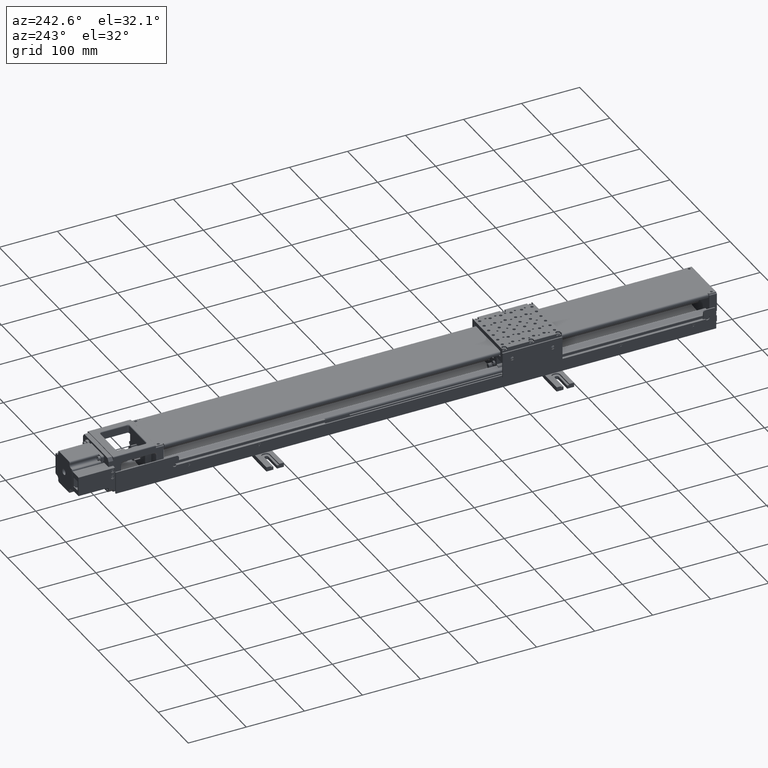
[diagram: clean part render]
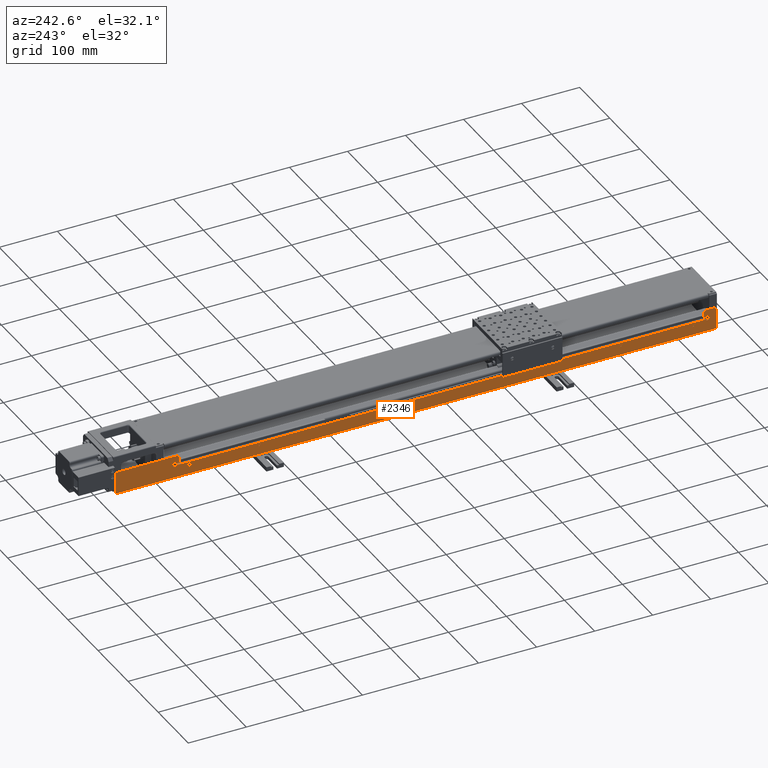
[diagram: same view with one face highlighted and labeled with its STEP entity id]
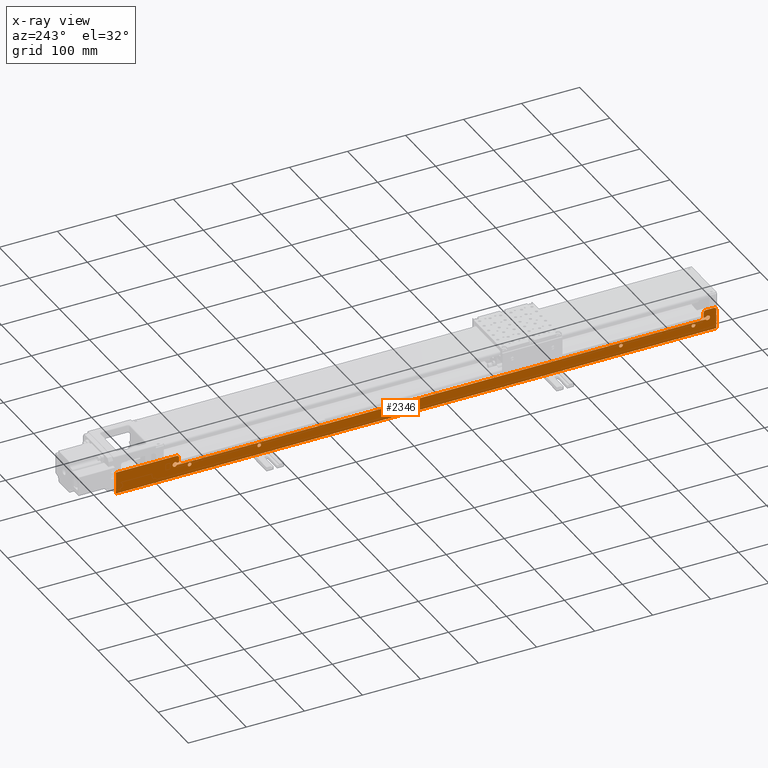
[diagram: x-ray of the same camera — body ghosted, the highlighted face saturated]
A machine part, auxiliary view. The second image highlights one B-rep face of the part: STEP entity #2346.
The next image is the same camera in x-ray: the body ghosted, the highlighted face saturated — about 0% of this face is hidden behind the body in this view.
In plain terms, the highlighted planar face has unit normal (-1, 0, 0).
Its self-contained STEP definition (entity closure, byte-faithful):
#343=FACE_BOUND('',#7809,.T.);
#344=FACE_BOUND('',#7810,.T.);
#345=FACE_BOUND('',#7811,.T.);
#346=FACE_BOUND('',#7812,.T.);
#2346=ADVANCED_FACE('',(#4913,#343,#344,#345,#346),#40998,.T.);
#4913=FACE_OUTER_BOUND('',#7808,.T.);
#7808=EDGE_LOOP('',(#19051,#19052,#19053,#19054,#19055,#19056,#19057,#19058,
#19059,#19060,#19061,#19062,#19063,#19064,#19065));
#7809=EDGE_LOOP('',(#19066,#19067));
#7810=EDGE_LOOP('',(#19068,#19069));
#7811=EDGE_LOOP('',(#19070,#19071));
#7812=EDGE_LOOP('',(#19072,#19073));
#19051=ORIENTED_EDGE('',*,*,#26981,.F.);
#19052=ORIENTED_EDGE('',*,*,#26923,.T.);
#19053=ORIENTED_EDGE('',*,*,#26924,.T.);
#19054=ORIENTED_EDGE('',*,*,#26925,.T.);
#19055=ORIENTED_EDGE('',*,*,#26926,.T.);
#19056=ORIENTED_EDGE('',*,*,#26974,.F.);
#19057=ORIENTED_EDGE('',*,*,#26927,.T.);
#19058=ORIENTED_EDGE('',*,*,#26978,.F.);
#19059=ORIENTED_EDGE('',*,*,#26928,.T.);
#19060=ORIENTED_EDGE('',*,*,#26929,.T.);
#19061=ORIENTED_EDGE('',*,*,#26941,.T.);
#19062=ORIENTED_EDGE('',*,*,#26930,.T.);
#19063=ORIENTED_EDGE('',*,*,#26945,.F.);
#19064=ORIENTED_EDGE('',*,*,#26931,.T.);
#19065=ORIENTED_EDGE('',*,*,#26932,.T.);
#19066=ORIENTED_EDGE('',*,*,#27387,.T.);
#19067=ORIENTED_EDGE('',*,*,#28594,.T.);
#19068=ORIENTED_EDGE('',*,*,#27385,.T.);
#19069=ORIENTED_EDGE('',*,*,#28589,.T.);
#19070=ORIENTED_EDGE('',*,*,#27383,.T.);
#19071=ORIENTED_EDGE('',*,*,#28584,.T.);
#19072=ORIENTED_EDGE('',*,*,#27381,.T.);
#19073=ORIENTED_EDGE('',*,*,#28579,.T.);
#26923=EDGE_CURVE('',#38783,#38784,#31963,.T.);
#26924=EDGE_CURVE('',#38784,#38785,#31964,.T.);
#26925=EDGE_CURVE('',#38785,#38786,#31965,.T.);
#26926=EDGE_CURVE('',#38786,#38787,#31966,.T.);
#26927=EDGE_CURVE('',#38788,#38789,#31967,.T.);
#26928=EDGE_CURVE('',#38790,#38682,#31968,.T.);
#26929=EDGE_CURVE('',#38682,#38681,#31969,.T.);
#26930=EDGE_CURVE('',#38677,#38676,#31970,.T.);
#26931=EDGE_CURVE('',#38615,#38614,#31971,.T.);
#26932=EDGE_CURVE('',#38614,#38782,#31972,.T.);
#26941=EDGE_CURVE('',#38681,#38677,#34014,.T.);
#26945=EDGE_CURVE('',#38615,#38676,#34018,.T.);
#26974=EDGE_CURVE('',#38788,#38787,#34041,.T.);
#26978=EDGE_CURVE('',#38790,#38789,#34043,.T.);
#26981=EDGE_CURVE('',#38783,#38782,#34044,.T.);
#27381=EDGE_CURVE('',#38794,#39667,#34332,.T.);
#27383=EDGE_CURVE('',#38793,#39670,#34334,.T.);
#27385=EDGE_CURVE('',#38792,#39673,#34336,.T.);
#27387=EDGE_CURVE('',#38791,#39676,#34338,.T.);
#28579=EDGE_CURVE('',#39667,#38794,#35328,.T.);
#28584=EDGE_CURVE('',#39670,#38793,#35333,.T.);
#28589=EDGE_CURVE('',#39673,#38792,#35338,.T.);
#28594=EDGE_CURVE('',#39676,#38791,#35343,.T.);
#31963=B_SPLINE_CURVE_WITH_KNOTS('',1,(#103647,#103648),.UNSPECIFIED.,.F.,
 .F.,(2,2),(92.9649920763877,103.44),.UNSPECIFIED.);
#31964=B_SPLINE_CURVE_WITH_KNOTS('',1,(#103649,#103650),.UNSPECIFIED.,.F.,
 .F.,(2,2),(0.,3.80000000000001),.UNSPECIFIED.);
#31965=B_SPLINE_CURVE_WITH_KNOTS('',1,(#103651,#103652),.UNSPECIFIED.,.F.,
 .F.,(2,2),(-3.5527136788005E-15,103.44),.UNSPECIFIED.);
#31966=B_SPLINE_CURVE_WITH_KNOTS('',1,(#103653,#103654),.UNSPECIFIED.,.F.,
 .F.,(2,2),(0.,3.4),.UNSPECIFIED.);
#31967=B_SPLINE_CURVE_WITH_KNOTS('',1,(#103655,#103656),.UNSPECIFIED.,.F.,
 .F.,(2,2),(0.400000000000006,1.77499207638769),.UNSPECIFIED.);
#31968=B_SPLINE_CURVE_WITH_KNOTS('',1,(#103657,#103658),.UNSPECIFIED.,.F.,
 .F.,(2,2),(1.74430345897824,2.61929371146844),.UNSPECIFIED.);
#31969=B_SPLINE_CURVE_WITH_KNOTS('',1,(#103659,#103660),.UNSPECIFIED.,.F.,
 .F.,(2,2),(91.03,91.3835898384863),.UNSPECIFIED.);
#31970=B_SPLINE_CURVE_WITH_KNOTS('',1,(#103661,#103662),.UNSPECIFIED.,.F.,
 .F.,(2,2),(0.0979778467550858,91.1951575237276),.UNSPECIFIED.);
#31971=B_SPLINE_CURVE_WITH_KNOTS('',1,(#103663,#103664),.UNSPECIFIED.,.F.,
 .F.,(2,2),(0.286410161513771,0.639999999999997),.UNSPECIFIED.);
#31972=B_SPLINE_CURVE_WITH_KNOTS('',1,(#103665,#103666),.UNSPECIFIED.,.F.,
 .F.,(2,2),(0.403027287657996,1.2780175401482),.UNSPECIFIED.);
#34014=(
BOUNDED_CURVE()
B_SPLINE_CURVE(2,(#103683,#103684,#103685,#103686,#103687,#103688,#103689,
#103690,#103691),.UNSPECIFIED.,.F.,.F.)
B_SPLINE_CURVE_WITH_KNOTS((3,2,2,2,3),(-5.75958653158127,-4.45058959258551,
-3.14159265358979,-1.832595714594,-0.523598775598243),.UNSPECIFIED.)
CURVE()
GEOMETRIC_REPRESENTATION_ITEM()
RATIONAL_B_SPLINE_CURVE((1.,0.793353340291232,1.,0.793353340291232,1.,0.793353340291232,
1.,0.793353340291232,1.))
REPRESENTATION_ITEM('')
);
#34018=(
BOUNDED_CURVE()
B_SPLINE_CURVE(2,(#103705,#103706,#103707,#103708,#103709,#103710,#103711,
#103712,#103713),.UNSPECIFIED.,.F.,.F.)
B_SPLINE_CURVE_WITH_KNOTS((3,2,2,2,3),(-2.61799387799149,-1.30899693899574,
4.44089209850063E-16,1.30899693899575,2.61799387799149),.UNSPECIFIED.)
CURVE()
GEOMETRIC_REPRESENTATION_ITEM()
RATIONAL_B_SPLINE_CURVE((1.,0.793353340291236,1.,0.793353340291236,1.,0.793353340291236,
1.,0.793353340291236,1.))
REPRESENTATION_ITEM('')
);
#34041=(
BOUNDED_CURVE()
B_SPLINE_CURVE(2,(#103796,#103797,#103798),.UNSPECIFIED.,.F.,.F.)
B_SPLINE_CURVE_WITH_KNOTS((3,3),(-0.785398163397456,0.785398163397441),
 .UNSPECIFIED.)
CURVE()
GEOMETRIC_REPRESENTATION_ITEM()
RATIONAL_B_SPLINE_CURVE((1.,0.707106781186548,1.))
REPRESENTATION_ITEM('')
);
#34043=(
BOUNDED_CURVE()
B_SPLINE_CURVE(2,(#103806,#103807,#103808),.UNSPECIFIED.,.F.,.F.)
B_SPLINE_CURVE_WITH_KNOTS((3,3),(-0.785398163397442,0.785398163397456),
 .UNSPECIFIED.)
CURVE()
GEOMETRIC_REPRESENTATION_ITEM()
RATIONAL_B_SPLINE_CURVE((1.,0.707106781186547,1.))
REPRESENTATION_ITEM('')
);
#34044=(
BOUNDED_CURVE()
B_SPLINE_CURVE(2,(#103813,#103814,#103815),.UNSPECIFIED.,.F.,.F.)
B_SPLINE_CURVE_WITH_KNOTS((3,3),(-0.78539816339745,0.785398163397445),
 .UNSPECIFIED.)
CURVE()
GEOMETRIC_REPRESENTATION_ITEM()
RATIONAL_B_SPLINE_CURVE((1.,0.707106781186548,1.))
REPRESENTATION_ITEM('')
);
#34332=(
BOUNDED_CURVE()
B_SPLINE_CURVE(2,(#105271,#105272,#105273,#105274,#105275),
 .UNSPECIFIED.,.F.,.F.)
B_SPLINE_CURVE_WITH_KNOTS((3,2,3),(3.14159265358979,4.71238898038468,6.28318530717959),
 .UNSPECIFIED.)
CURVE()
GEOMETRIC_REPRESENTATION_ITEM()
RATIONAL_B_SPLINE_CURVE((1.,0.707106781186548,1.,0.707106781186548,1.))
REPRESENTATION_ITEM('')
);
#34334=(
BOUNDED_CURVE()
B_SPLINE_CURVE(2,(#105281,#105282,#105283,#105284,#105285),
 .UNSPECIFIED.,.F.,.F.)
B_SPLINE_CURVE_WITH_KNOTS((3,2,3),(3.14159265358979,4.71238898038468,6.28318530717959),
 .UNSPECIFIED.)
CURVE()
GEOMETRIC_REPRESENTATION_ITEM()
RATIONAL_B_SPLINE_CURVE((1.,0.707106781186548,1.,0.707106781186548,1.))
REPRESENTATION_ITEM('')
);
#34336=(
BOUNDED_CURVE()
B_SPLINE_CURVE(2,(#105291,#105292,#105293,#105294,#105295),
 .UNSPECIFIED.,.F.,.F.)
B_SPLINE_CURVE_WITH_KNOTS((3,2,3),(3.14159265358979,4.71238898038468,6.28318530717959),
 .UNSPECIFIED.)
CURVE()
GEOMETRIC_REPRESENTATION_ITEM()
RATIONAL_B_SPLINE_CURVE((1.,0.707106781186548,1.,0.707106781186548,1.))
REPRESENTATION_ITEM('')
);
#34338=(
BOUNDED_CURVE()
B_SPLINE_CURVE(2,(#105301,#105302,#105303,#105304,#105305),
 .UNSPECIFIED.,.F.,.F.)
B_SPLINE_CURVE_WITH_KNOTS((3,2,3),(3.14159265358979,4.71238898038468,6.28318530717959),
 .UNSPECIFIED.)
CURVE()
GEOMETRIC_REPRESENTATION_ITEM()
RATIONAL_B_SPLINE_CURVE((1.,0.707106781186548,1.,0.707106781186548,1.))
REPRESENTATION_ITEM('')
);
#35328=(
BOUNDED_CURVE()
B_SPLINE_CURVE(2,(#111871,#111872,#111873,#111874,#111875),
 .UNSPECIFIED.,.F.,.F.)
B_SPLINE_CURVE_WITH_KNOTS((3,2,3),(6.28318530717959,7.85398163397449,9.42477796076938),
 .UNSPECIFIED.)
CURVE()
GEOMETRIC_REPRESENTATION_ITEM()
RATIONAL_B_SPLINE_CURVE((1.,0.707106781186548,1.,0.707106781186548,1.))
REPRESENTATION_ITEM('')
);
#35333=(
BOUNDED_CURVE()
B_SPLINE_CURVE(2,(#111890,#111891,#111892,#111893,#111894),
 .UNSPECIFIED.,.F.,.F.)
B_SPLINE_CURVE_WITH_KNOTS((3,2,3),(6.28318530717959,7.85398163397449,9.42477796076938),
 .UNSPECIFIED.)
CURVE()
GEOMETRIC_REPRESENTATION_ITEM()
RATIONAL_B_SPLINE_CURVE((1.,0.707106781186548,1.,0.707106781186548,1.))
REPRESENTATION_ITEM('')
);
#35338=(
BOUNDED_CURVE()
B_SPLINE_CURVE(2,(#111909,#111910,#111911,#111912,#111913),
 .UNSPECIFIED.,.F.,.F.)
B_SPLINE_CURVE_WITH_KNOTS((3,2,3),(6.28318530717959,7.85398163397449,9.42477796076938),
 .UNSPECIFIED.)
CURVE()
GEOMETRIC_REPRESENTATION_ITEM()
RATIONAL_B_SPLINE_CURVE((1.,0.707106781186548,1.,0.707106781186548,1.))
REPRESENTATION_ITEM('')
);
#35343=(
BOUNDED_CURVE()
B_SPLINE_CURVE(2,(#111928,#111929,#111930,#111931,#111932),
 .UNSPECIFIED.,.F.,.F.)
B_SPLINE_CURVE_WITH_KNOTS((3,2,3),(6.28318530717959,7.85398163397449,9.42477796076938),
 .UNSPECIFIED.)
CURVE()
GEOMETRIC_REPRESENTATION_ITEM()
RATIONAL_B_SPLINE_CURVE((1.,0.707106781186548,1.,0.707106781186548,1.))
REPRESENTATION_ITEM('')
);
#38614=VERTEX_POINT('',#72109);
#38615=VERTEX_POINT('',#72110);
#38676=VERTEX_POINT('',#72171);
#38677=VERTEX_POINT('',#72172);
#38681=VERTEX_POINT('',#72176);
#38682=VERTEX_POINT('',#72177);
#38782=VERTEX_POINT('',#72277);
#38783=VERTEX_POINT('',#72278);
#38784=VERTEX_POINT('',#72279);
#38785=VERTEX_POINT('',#72280);
#38786=VERTEX_POINT('',#72281);
#38787=VERTEX_POINT('',#72282);
#38788=VERTEX_POINT('',#72283);
#38789=VERTEX_POINT('',#72284);
#38790=VERTEX_POINT('',#72285);
#38791=VERTEX_POINT('',#72286);
#38792=VERTEX_POINT('',#72287);
#38793=VERTEX_POINT('',#72288);
#38794=VERTEX_POINT('',#72289);
#39667=VERTEX_POINT('',#73162);
#39670=VERTEX_POINT('',#73165);
#39673=VERTEX_POINT('',#73168);
#39676=VERTEX_POINT('',#73171);
#40998=PLANE('',#43787);
#43787=AXIS2_PLACEMENT_3D('',#66610,#45708,$);
#45708=DIRECTION('',(-1.,0.,0.));
#66610=CARTESIAN_POINT('',(-48.7,487.204695828466,9.190000276867));
#72109=CARTESIAN_POINT('',(-48.7,378.444616592343,34.4500977519653));
#72110=CARTESIAN_POINT('',(-48.7,381.980514977205,34.4500977519653));
#72171=CARTESIAN_POINT('',(-48.7,381.980514977205,30.4500977519652));
#72172=CARTESIAN_POINT('',(-48.7,-528.991281792519,30.4500977519664));
#72176=CARTESIAN_POINT('',(-48.7,-528.991281792519,34.4500977519663));
#72177=CARTESIAN_POINT('',(-48.7,-525.455383407657,34.4500977519663));
#72277=CARTESIAN_POINT('',(-48.7,378.444616592343,43.2000002768673));
#72278=CARTESIAN_POINT('',(-48.7,382.444616592343,47.2000002768673));
#72279=CARTESIAN_POINT('',(-48.7,487.194695828466,47.2000002768672));
#72280=CARTESIAN_POINT('',(-48.7,487.194695828466,9.20000027686701));
#72281=CARTESIAN_POINT('',(-48.7,-547.205304171534,9.20000027686822));
#72282=CARTESIAN_POINT('',(-48.7,-547.205304171534,43.2000002768683));
#72283=CARTESIAN_POINT('',(-48.7,-543.205304171534,47.2000002768683));
#72284=CARTESIAN_POINT('',(-48.7,-529.455383407657,47.2000002768682));
#72285=CARTESIAN_POINT('',(-48.7,-525.455383407657,43.2000002768682));
#72286=CARTESIAN_POINT('',(-48.6999999999997,243.344695828466,25.2000002768674));
#72287=CARTESIAN_POINT('',(-48.7,-504.751591135543,25.2000002768682));
#72288=CARTESIAN_POINT('',(-48.7,-379.751591135543,25.2000002768681));
#72289=CARTESIAN_POINT('',(-48.6999999999997,363.344695828466,25.2000002768673));
#73162=CARTESIAN_POINT('',(-48.6999999999999,357.044695828466,25.2000002768673));
#73165=CARTESIAN_POINT('',(-48.7,-386.051591135544,25.2000002768681));
#73168=CARTESIAN_POINT('',(-48.7,-511.051591135543,25.2000002768682));
#73171=CARTESIAN_POINT('',(-48.6999999999999,237.044695828465,25.2000002768674));
#103647=CARTESIAN_POINT('',(-48.7,382.444616592343,47.2000002768673));
#103648=CARTESIAN_POINT('',(-48.7,487.194695828466,47.2000002768672));
#103649=CARTESIAN_POINT('',(-48.7,487.194695828466,47.2000002768672));
#103650=CARTESIAN_POINT('',(-48.7,487.194695828466,9.20000027686701));
#103651=CARTESIAN_POINT('',(-48.7,487.194695828466,9.20000027686701));
#103652=CARTESIAN_POINT('',(-48.7,-547.205304171534,9.20000027686822));
#103653=CARTESIAN_POINT('',(-48.7,-547.205304171534,9.20000027686822));
#103654=CARTESIAN_POINT('',(-48.7,-547.205304171534,43.2000002768683));
#103655=CARTESIAN_POINT('',(-48.7,-543.205304171534,47.2000002768683));
#103656=CARTESIAN_POINT('',(-48.7,-529.455383407657,47.2000002768682));
#103657=CARTESIAN_POINT('',(-48.7,-525.455383407657,43.2000002768682));
#103658=CARTESIAN_POINT('',(-48.7,-525.455383407657,34.4500977519663));
#103659=CARTESIAN_POINT('',(-48.7,-525.455383407657,34.4500977519663));
#103660=CARTESIAN_POINT('',(-48.7,-528.991281792519,34.4500977519663));
#103661=CARTESIAN_POINT('',(-48.7,-528.991281792519,30.4500977519664));
#103662=CARTESIAN_POINT('',(-48.7,381.980514977205,30.4500977519652));
#103663=CARTESIAN_POINT('',(-48.7,381.980514977205,34.4500977519653));
#103664=CARTESIAN_POINT('',(-48.7,378.444616592343,34.4500977519653));
#103665=CARTESIAN_POINT('',(-48.7,378.444616592343,34.4500977519653));
#103666=CARTESIAN_POINT('',(-48.7,378.444616592343,43.2000002768673));
#103683=CARTESIAN_POINT('',(-48.7,-528.991281792519,34.4500977519663));
#103684=CARTESIAN_POINT('',(-48.7,-530.525935768478,37.108196410363));
#103685=CARTESIAN_POINT('',(-48.7,-533.490659588067,36.3138010571225));
#103686=CARTESIAN_POINT('',(-48.7,-536.455383407657,35.5194057038821));
#103687=CARTESIAN_POINT('',(-48.7,-536.455383407657,32.4500977519663));
#103688=CARTESIAN_POINT('',(-48.7,-536.455383407657,29.3807898000503));
#103689=CARTESIAN_POINT('',(-48.7,-533.490659588067,28.5863944468099));
#103690=CARTESIAN_POINT('',(-48.7,-530.525935768477,27.7919990935696));
#103691=CARTESIAN_POINT('',(-48.7,-528.991281792519,30.4500977519664));
#103705=CARTESIAN_POINT('',(-48.7,381.980514977205,34.4500977519653));
#103706=CARTESIAN_POINT('',(-48.7,383.515168953163,37.1081964103619));
#103707=CARTESIAN_POINT('',(-48.7,386.479892772753,36.3138010571216));
#103708=CARTESIAN_POINT('',(-48.7,389.444616592343,35.5194057038811));
#103709=CARTESIAN_POINT('',(-48.7,389.444616592343,32.4500977519652));
#103710=CARTESIAN_POINT('',(-48.7,389.444616592343,29.3807898000494));
#103711=CARTESIAN_POINT('',(-48.7,386.479892772753,28.5863944468089));
#103712=CARTESIAN_POINT('',(-48.7,383.515168953163,27.7919990935685));
#103713=CARTESIAN_POINT('',(-48.7,381.980514977205,30.4500977519652));
#103796=CARTESIAN_POINT('',(-48.7,-543.205304171534,47.2000002768683));
#103797=CARTESIAN_POINT('',(-48.7,-547.205304171534,47.2000002768682));
#103798=CARTESIAN_POINT('',(-48.7,-547.205304171534,43.2000002768683));
#103806=CARTESIAN_POINT('',(-48.7,-525.455383407657,43.2000002768682));
#103807=CARTESIAN_POINT('',(-48.7,-525.455383407657,47.2000002768682));
#103808=CARTESIAN_POINT('',(-48.7,-529.455383407657,47.2000002768682));
#103813=CARTESIAN_POINT('',(-48.7,382.444616592343,47.2000002768673));
#103814=CARTESIAN_POINT('',(-48.7,378.444616592344,47.2000002768673));
#103815=CARTESIAN_POINT('',(-48.7,378.444616592343,43.2000002768673));
#105271=CARTESIAN_POINT('',(-48.6999999999997,363.344695828466,25.2000002768673));
#105272=CARTESIAN_POINT('',(-48.6999999999997,363.344695828466,28.3500002768671));
#105273=CARTESIAN_POINT('',(-48.6999999999998,360.194695828466,28.3500002768671));
#105274=CARTESIAN_POINT('',(-48.6999999999999,357.044695828466,28.3500002768671));
#105275=CARTESIAN_POINT('',(-48.6999999999999,357.044695828466,25.2000002768673));
#105281=CARTESIAN_POINT('',(-48.7,-379.751591135543,25.2000002768681));
#105282=CARTESIAN_POINT('',(-48.7,-379.751591135543,28.3500002768681));
#105283=CARTESIAN_POINT('',(-48.7,-382.901591135543,28.3500002768681));
#105284=CARTESIAN_POINT('',(-48.7,-386.051591135543,28.3500002768681));
#105285=CARTESIAN_POINT('',(-48.7,-386.051591135544,25.2000002768681));
#105291=CARTESIAN_POINT('',(-48.7,-504.751591135543,25.2000002768682));
#105292=CARTESIAN_POINT('',(-48.7,-504.751591135543,28.3500002768682));
#105293=CARTESIAN_POINT('',(-48.7,-507.901591135543,28.3500002768682));
#105294=CARTESIAN_POINT('',(-48.7,-511.051591135543,28.3500002768682));
#105295=CARTESIAN_POINT('',(-48.7,-511.051591135543,25.2000002768682));
#105301=CARTESIAN_POINT('',(-48.6999999999997,243.344695828466,25.2000002768674));
#105302=CARTESIAN_POINT('',(-48.6999999999997,243.344695828466,28.3500002768673));
#105303=CARTESIAN_POINT('',(-48.6999999999998,240.194695828466,28.3500002768673));
#105304=CARTESIAN_POINT('',(-48.6999999999999,237.044695828466,28.3500002768673));
#105305=CARTESIAN_POINT('',(-48.6999999999999,237.044695828465,25.2000002768674));
#111871=CARTESIAN_POINT('',(-48.6999999999999,357.044695828466,25.2000002768673));
#111872=CARTESIAN_POINT('',(-48.6999999999999,357.044695828466,22.0500002768674));
#111873=CARTESIAN_POINT('',(-48.6999999999998,360.194695828466,22.0500002768674));
#111874=CARTESIAN_POINT('',(-48.6999999999997,363.344695828466,22.0500002768674));
#111875=CARTESIAN_POINT('',(-48.6999999999997,363.344695828466,25.2000002768673));
#111890=CARTESIAN_POINT('',(-48.7,-386.051591135544,25.2000002768681));
#111891=CARTESIAN_POINT('',(-48.7,-386.051591135543,22.0500002768681));
#111892=CARTESIAN_POINT('',(-48.7,-382.901591135543,22.0500002768681));
#111893=CARTESIAN_POINT('',(-48.7,-379.751591135543,22.0500002768681));
#111894=CARTESIAN_POINT('',(-48.7,-379.751591135543,25.2000002768681));
#111909=CARTESIAN_POINT('',(-48.7,-511.051591135543,25.2000002768682));
#111910=CARTESIAN_POINT('',(-48.7,-511.051591135543,22.0500002768682));
#111911=CARTESIAN_POINT('',(-48.7,-507.901591135543,22.0500002768682));
#111912=CARTESIAN_POINT('',(-48.7,-504.751591135543,22.0500002768682));
#111913=CARTESIAN_POINT('',(-48.7,-504.751591135543,25.2000002768682));
#111928=CARTESIAN_POINT('',(-48.6999999999999,237.044695828465,25.2000002768674));
#111929=CARTESIAN_POINT('',(-48.6999999999999,237.044695828466,22.0500002768675));
#111930=CARTESIAN_POINT('',(-48.6999999999998,240.194695828466,22.0500002768675));
#111931=CARTESIAN_POINT('',(-48.6999999999997,243.344695828466,22.0500002768675));
#111932=CARTESIAN_POINT('',(-48.6999999999997,243.344695828466,25.2000002768674));